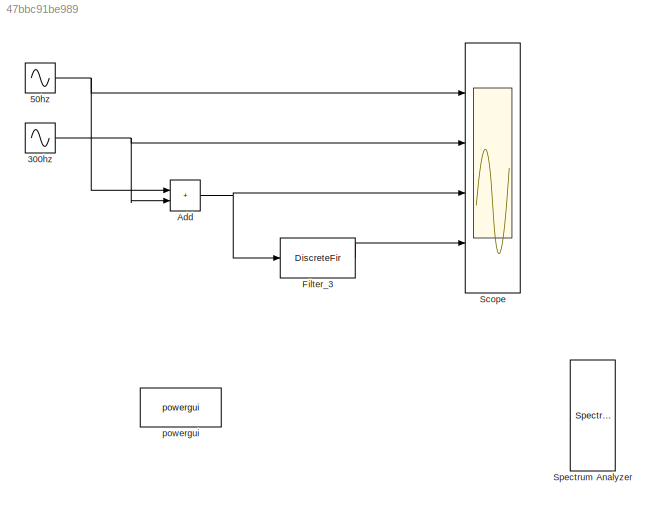
MODEL slx_47bbc91be989
KIND model
CONFIG AbsTol = auto
CONFIG EnableMultiTasking = off
CONFIG FixedStep = 1/44100
CONFIG MaxStep = 0.0001
CONFIG MinStep = auto
CONFIG RelTol = 1e-3
CONFIG SampleTimeConstraint = Unconstrained
CONFIG SolverName = ode3
CONFIG StartTime = 0.0
CONFIG StopTime = 0.1
BLOCK [Sin] 300hz
  Amplitude = 100
  Frequency = 300*2*pi
  Ports = [0, 1]
  SampleTime = 0
BLOCK [Sin] 50hz
  Amplitude = 100
  Frequency = 50*2*pi
  Ports = [0, 1]
  SampleTime = 0
BLOCK [Sum] Add
  IconShape = rectangular
  Ports = [2, 1]
BLOCK [DiscreteFir] Filter_3
  Coefficients = [-0.000367126694754497755 -0.00036594039566067402 -0.000364900058315522746 -0.000364003894192419604 -0.000363250041389006771 -0.000362636565256048025 -0.000362161459048927997 -0.00036182264460161268 -0.000361617973022879396 -0.000361545225414607453 -0.000361602113611928389 -0.000361786280945024631 -0.00036209530302234598 -0.000362526688535029398 -0.000363077880082286948 -0.000363746255017514616 -0...<+16320ch>
  InputPortMap = u0
  InputProcessing = Columns as channels (frame based)
  OutputPortMap = o0
  Ports = [1, 1]
  Tag = BlockMethodSubSystem
BLOCK [Scope] Scope
  Floating = off
  NumInputPorts = 4
  Ports = [4]
  ScopeSpecificationString = Simulink.scopes.TimeScopeBlockCfg('CurrentConfiguration', extmgr.ConfigurationSet(extmgr.Configuration('Core','General UI',true),extmgr.Configuration('Core','Source UI',true),extmgr.Configuration('Sources','WiredSimulink',true,'DataLogging',true,'DataLoggingSaveFormat','StructureWithTime'),extmgr.Configuration('Visuals','Time Domain',true,'SerializedDisplays',{struct('MinYLimReal','-124.99921','Ma...<+3570ch>
BLOCK [SpectrumAnalyzer] Spectrum Analyzer
  NumInputPorts = 4
  Ports = [4]
  ScopeSpecificationString = spbscopes.SpectrumAnalyzerBlockCfg('CurrentConfiguration', extmgr.ConfigurationSet(extmgr.Configuration('Core','General UI',true),extmgr.Configuration('Core','Source UI',true),extmgr.Configuration('Sources','WiredSimulink',true),extmgr.Configuration('Sources','SimulinkEvent',false),extmgr.Configuration('Sources','Simulink',false),extmgr.Configuration('Sources','SPTool',false),extmgr.Configuration(...<+4473ch>
BLOCK [Reference] powergui  REF=powerlib/powergui
  Ports = []
  Priority = 1
  SourceBlock = powerlib/powergui
  SourceProductBaseCode = PS
  SourceType = PSB option menu block
NET 300hz:1 -> Add:2, Scope:2
NET 50hz:1 -> Add:1, Scope:1
NET Add:1 -> Filter_3:1, Scope:3
LINE Filter_3:1 -> Scope:4
note: NET lines group one-source signal fan-out (src -> all destinations, sorted); 1:1 wires keep LINE
